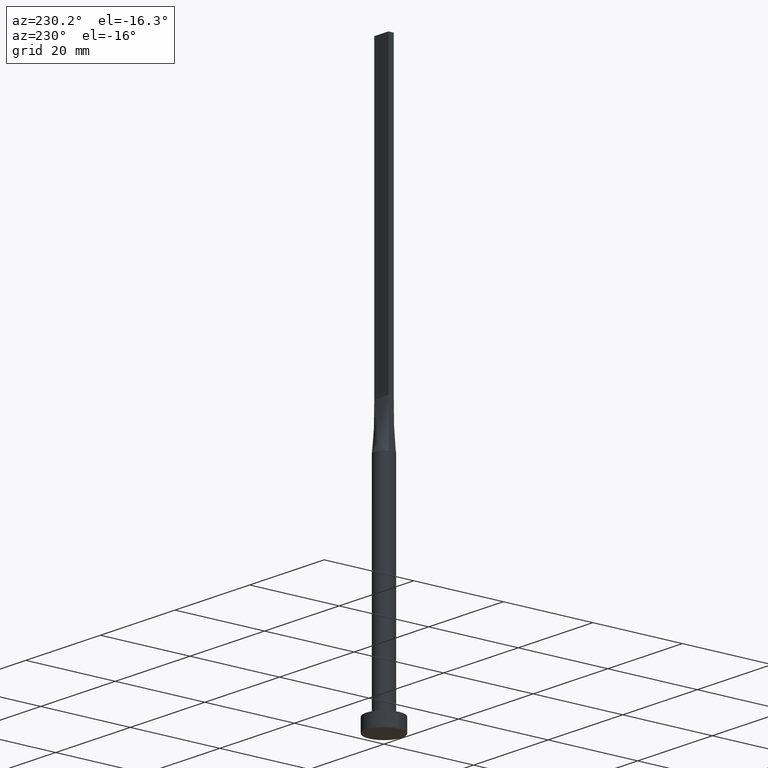
[diagram: clean part render]
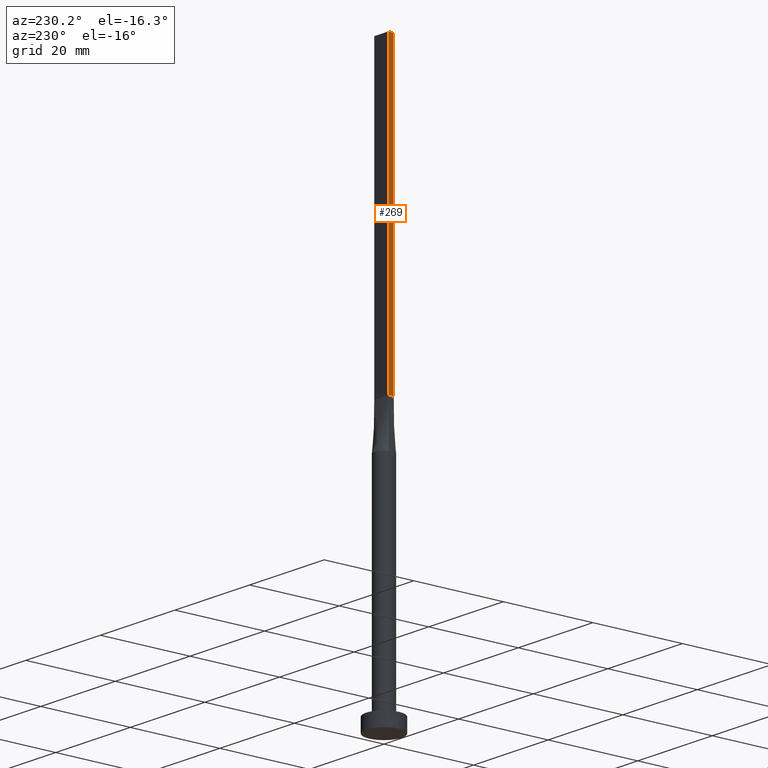
[diagram: same view with one face highlighted and labeled with its STEP entity id]
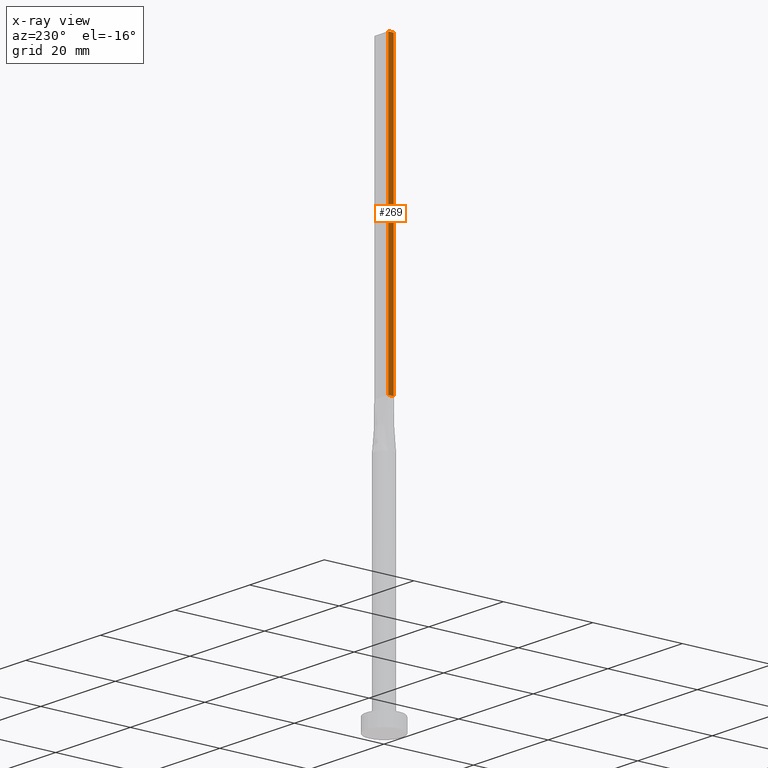
[diagram: x-ray of the same camera — body ghosted, the highlighted face saturated]
A machine part, auxiliary view. The second image highlights one B-rep face of the part: STEP entity #269.
The next image is the same camera in x-ray: the body ghosted, the highlighted face saturated — about 0% of this face is hidden behind the body in this view.
In plain terms, the highlighted planar face has unit normal (1, -0, 0).
Its self-contained STEP definition (entity closure, byte-faithful):
#6 = ORIENTED_EDGE ( 'NONE', *, *, #461, .T. ) ;
#22 = VERTEX_POINT ( 'NONE', #385 ) ;
#31 = ORIENTED_EDGE ( 'NONE', *, *, #48, .F. ) ;
#46 = DIRECTION ( 'NONE',  ( -0.000000000000000000, -0.000000000000000000, -1.000000000000000000 ) ) ;
#48 = EDGE_CURVE ( 'NONE', #22, #576, #437, .T. ) ;
#77 = CARTESIAN_POINT ( 'NONE',  ( -1.899999999999999689, 0.6000000000000001998, 60.00000000000000711 ) ) ;
#78 = VERTEX_POINT ( 'NONE', #77 ) ;
#97 = DIRECTION ( 'NONE',  ( -1.807003620809174632E-16, -1.000000000000000000, 0.000000000000000000 ) ) ;
#99 = VECTOR ( 'NONE', #97, 1000.000000000000000 ) ;
#115 = ORIENTED_EDGE ( 'NONE', *, *, #325, .F. ) ;
#117 = DIRECTION ( 'NONE',  ( -0.000000000000000000, -0.000000000000000000, -1.000000000000000000 ) ) ;
#126 = VERTEX_POINT ( 'NONE', #153 ) ;
#131 = CARTESIAN_POINT ( 'NONE',  ( -1.899999999999999689, 0.6000000000000001998, 125.0000000000000000 ) ) ;
#153 = CARTESIAN_POINT ( 'NONE',  ( -1.899999999999999911, -0.5999999999999995337, 60.00000000000000711 ) ) ;
#225 = FACE_OUTER_BOUND ( 'NONE', #439, .T. ) ;
#228 = DIRECTION ( 'NONE',  ( 1.807003620809174632E-16, 1.000000000000000000, 0.000000000000000000 ) ) ;
#269 = ADVANCED_FACE ( 'NONE', ( #225 ), #350, .F. ) ;
#271 = CARTESIAN_POINT ( 'NONE',  ( -1.899999999999999911, -0.5999999999999995337, 125.0000000000000000 ) ) ;
#313 = DIRECTION ( 'NONE',  ( 1.000000000000000000, -1.807003620809174632E-16, 0.000000000000000000 ) ) ;
#319 = DIRECTION ( 'NONE',  ( -1.807003620809174632E-16, -1.000000000000000000, 0.000000000000000000 ) ) ;
#325 = EDGE_CURVE ( 'NONE', #576, #126, #531, .T. ) ;
#326 = VECTOR ( 'NONE', #117, 1000.000000000000000 ) ;
#329 = LINE ( 'NONE', #569, #99 ) ;
#330 = EDGE_CURVE ( 'NONE', #78, #126, #329, .T. ) ;
#339 = LINE ( 'NONE', #532, #326 ) ;
#350 = PLANE ( 'NONE',  #368 ) ;
#368 = AXIS2_PLACEMENT_3D ( 'NONE', #131, #313, #228 ) ;
#385 = CARTESIAN_POINT ( 'NONE',  ( -1.899999999999999689, 0.6000000000000001998, 125.0000000000000000 ) ) ;
#422 = VECTOR ( 'NONE', #319, 1000.000000000000000 ) ;
#437 = LINE ( 'NONE', #529, #422 ) ;
#439 = EDGE_LOOP ( 'NONE', ( #467, #115, #31, #6 ) ) ;
#461 = EDGE_CURVE ( 'NONE', #22, #78, #339, .T. ) ;
#467 = ORIENTED_EDGE ( 'NONE', *, *, #330, .T. ) ;
#469 = VECTOR ( 'NONE', #46, 1000.000000000000000 ) ;
#488 = CARTESIAN_POINT ( 'NONE',  ( -1.899999999999999911, -0.5999999999999995337, 125.0000000000000000 ) ) ;
#529 = CARTESIAN_POINT ( 'NONE',  ( -1.899999999999999689, 0.6000000000000001998, 125.0000000000000000 ) ) ;
#531 = LINE ( 'NONE', #488, #469 ) ;
#532 = CARTESIAN_POINT ( 'NONE',  ( -1.899999999999999689, 0.6000000000000001998, 125.0000000000000000 ) ) ;
#569 = CARTESIAN_POINT ( 'NONE',  ( -1.899999999999999689, 0.6000000000000001998, 60.00000000000000711 ) ) ;
#576 = VERTEX_POINT ( 'NONE', #271 ) ;